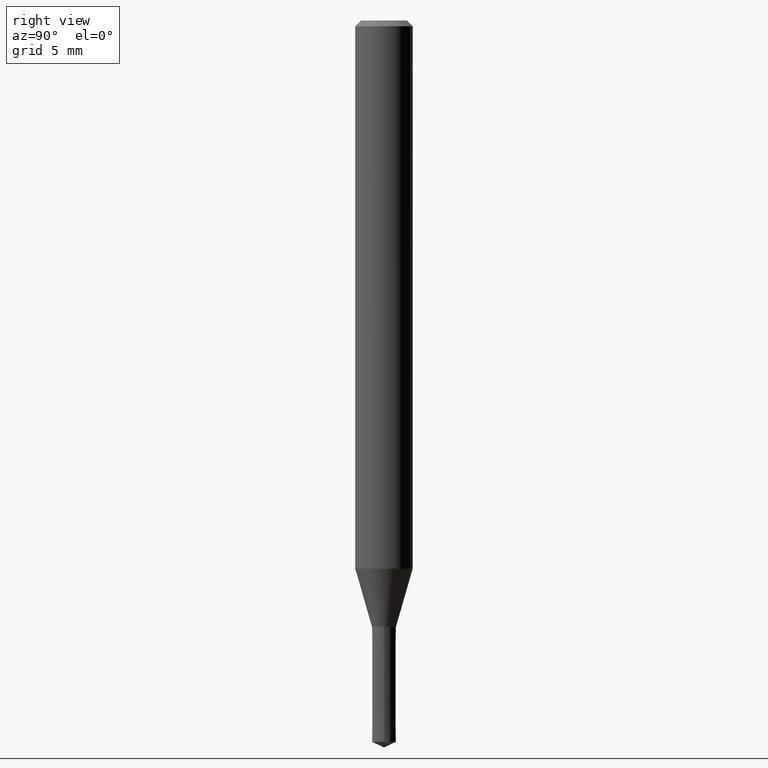
[diagram: clean part render]
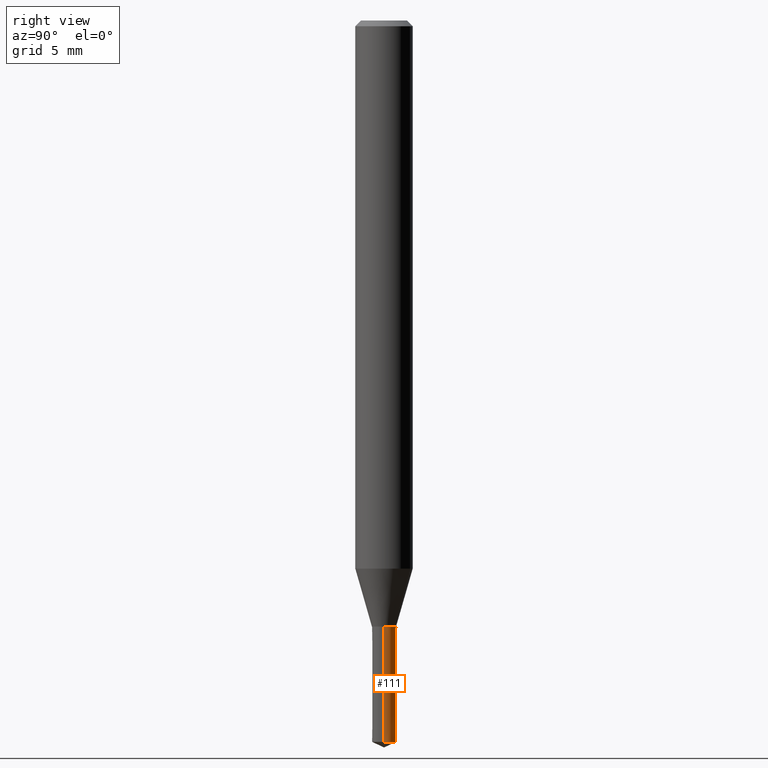
[diagram: same view with one face highlighted and labeled with its STEP entity id]
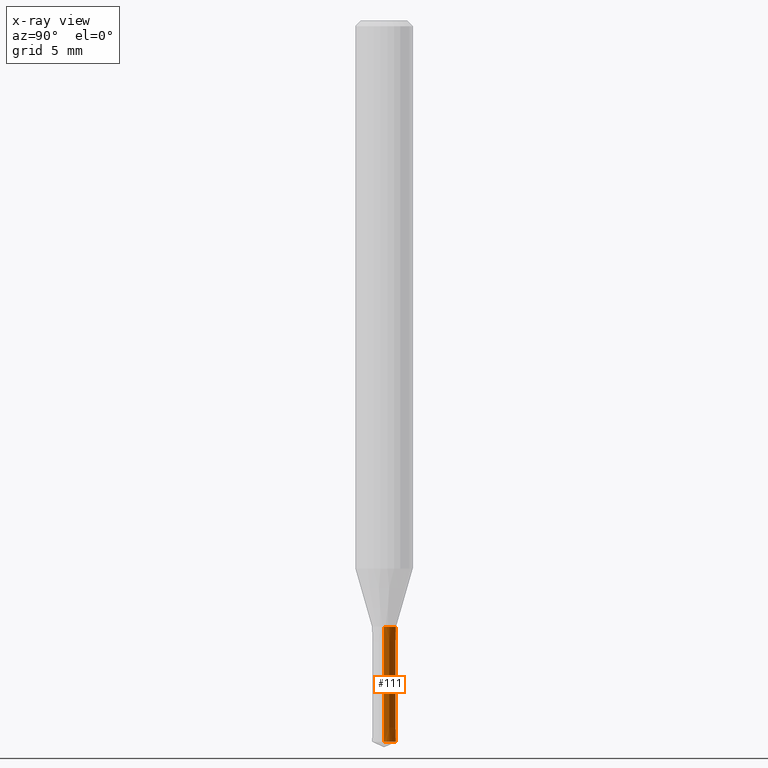
[diagram: x-ray of the same camera — body ghosted, the highlighted face saturated]
A machine part, right view. The second image highlights one B-rep face of the part: STEP entity #111.
The next image is the same camera in x-ray: the body ghosted, the highlighted face saturated — about 0% of this face is hidden behind the body in this view.
In plain terms, the highlighted conical surface has half-angle 0.01 deg.
Its self-contained STEP definition (entity closure, byte-faithful):
#105=EDGE_CURVE('',#181,#193,#242,.T.);
#111=ADVANCED_FACE('',(#248),#249,.T.);
#113=VERTEX_POINT('',#251);
#149=EDGE_CURVE('',#193,#157,#293,.T.);
#155=EDGE_CURVE('',#181,#113,#299,.T.);
#157=VERTEX_POINT('',#301);
#181=VERTEX_POINT('',#328);
#193=VERTEX_POINT('',#341);
#201=EDGE_CURVE('',#157,#113,#349,.T.);
#242=LINE('',#391,#392);
#248=FACE_OUTER_BOUND('',#398,.T.);
#249=CONICAL_SURFACE('',#399,0.6255,0.000166429289528634);
#251=CARTESIAN_POINT('',(0.626,7.66603577492808E-017,-31.7));
#293=CIRCLE('',#455,0.625);
#299=CIRCLE('',#465,0.626);
#301=CARTESIAN_POINT('',(0.625,7.65378971138986E-017,-37.70855771));
#328=CARTESIAN_POINT('',(-0.626,0.0,-31.7));
#341=CARTESIAN_POINT('',(-0.625,0.0,-37.70855771));
#349=LINE('',#526,#527);
#391=CARTESIAN_POINT('',(-0.6255,-7.65991274315897E-017,-34.704278855));
#392=VECTOR('',#562,1.0);
#398=EDGE_LOOP('',(#564,#565,#566,#567));
#399=AXIS2_PLACEMENT_3D('',#568,#569,#570);
#455=AXIS2_PLACEMENT_3D('',#628,#629,#630);
#465=AXIS2_PLACEMENT_3D('',#635,#636,#637);
#526=CARTESIAN_POINT('',(0.6255,7.65991274315897E-017,-34.704278855));
#527=VECTOR('',#688,1.0);
#562=DIRECTION('',(0.000166429288760322,2.03810364478029E-020,-0.999999986150646));
#564=ORIENTED_EDGE('',*,*,#105,.F.);
#565=ORIENTED_EDGE('',*,*,#155,.T.);
#566=ORIENTED_EDGE('',*,*,#201,.F.);
#567=ORIENTED_EDGE('',*,*,#149,.F.);
#568=CARTESIAN_POINT('',(0.0,0.0,-34.704278855));
#569=DIRECTION('',(-0.0,-0.0,1.0));
#570=DIRECTION('',(-1.0,0.0,0.0));
#628=CARTESIAN_POINT('',(0.0,0.0,-37.70855771));
#629=DIRECTION('',(0.0,0.0,-1.0));
#630=DIRECTION('',(-1.0,0.0,0.0));
#635=CARTESIAN_POINT('',(0.0,0.0,-31.7));
#636=DIRECTION('',(0.0,0.0,-1.0));
#637=DIRECTION('',(-1.0,0.0,0.0));
#688=DIRECTION('',(0.000166429288760322,2.03810364478029E-020,0.999999986150646));